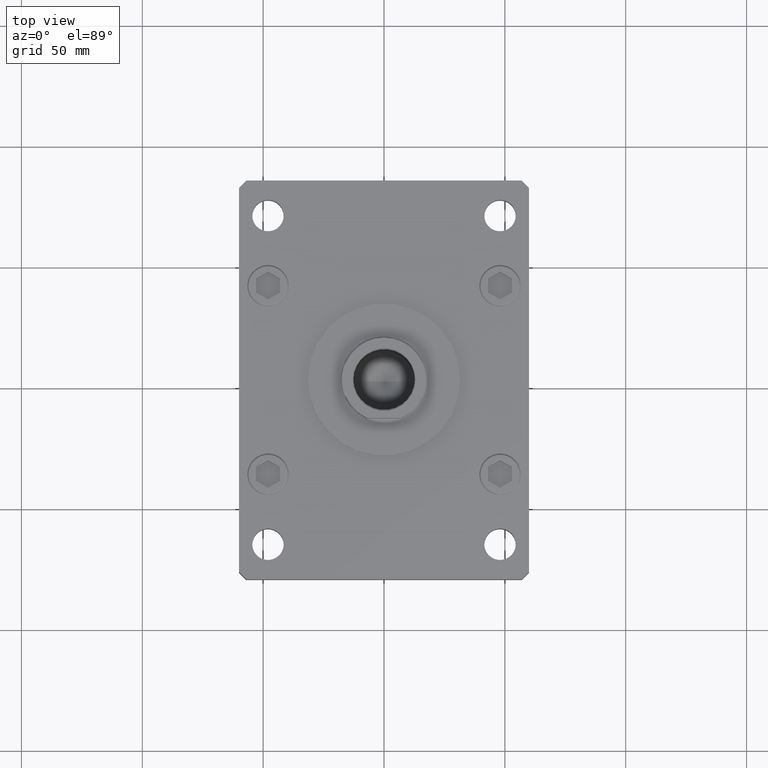
[diagram: clean part render]
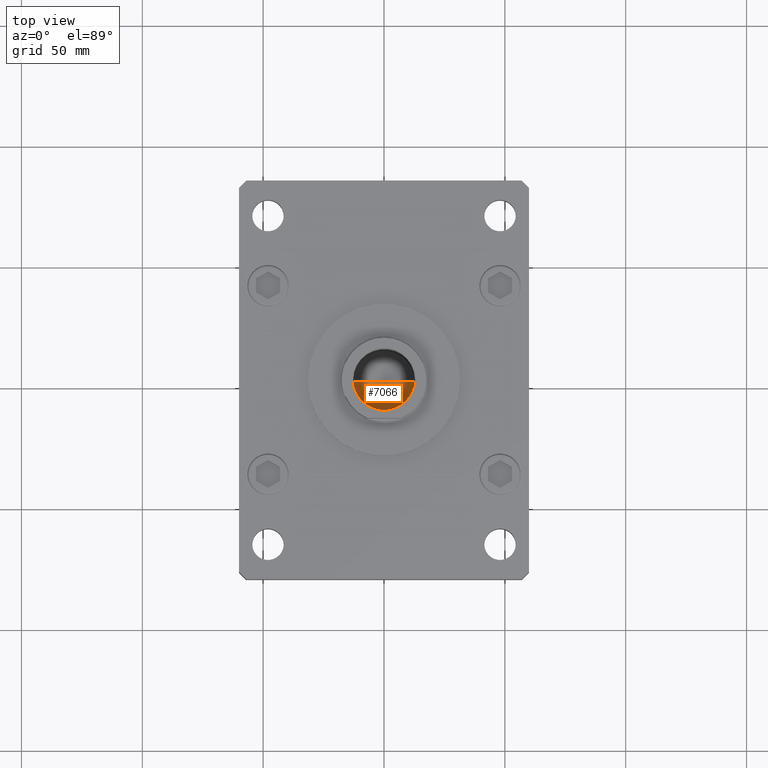
[diagram: same view with one face highlighted and labeled with its STEP entity id]
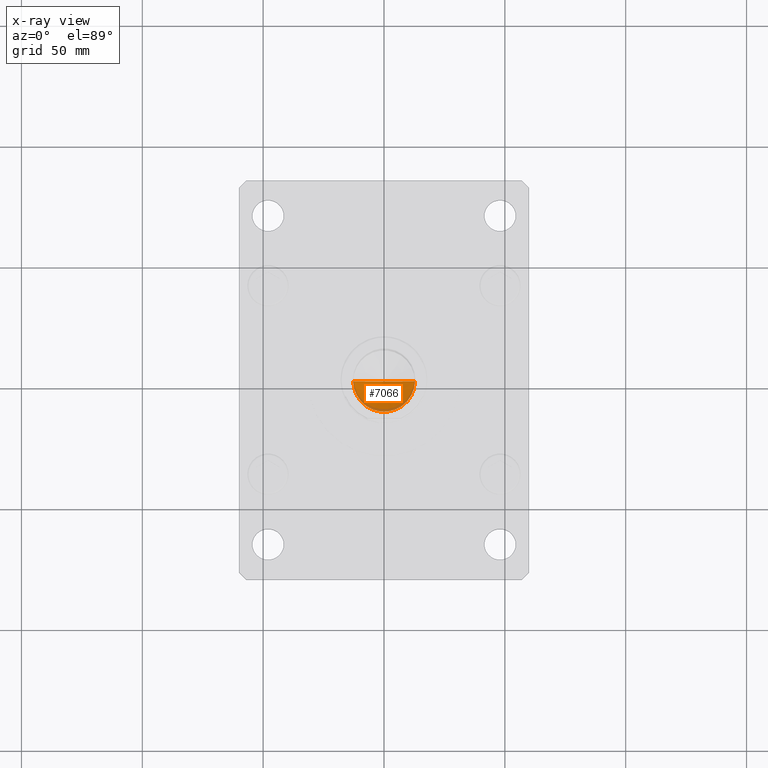
[diagram: x-ray of the same camera — body ghosted, the highlighted face saturated]
A machine part, top view. The second image highlights one B-rep face of the part: STEP entity #7066.
The next image is the same camera in x-ray: the body ghosted, the highlighted face saturated — about 8% of this face is hidden behind the body in this view.
In plain terms, the highlighted conical surface has half-angle 59 deg.
Its self-contained STEP definition (entity closure, byte-faithful):
#1319 = VECTOR ( 'NONE', #18198, 1000.000000000000114 ) ;
#5243 = EDGE_CURVE ( 'NONE', #44090, #50229, #25740, .T. ) ;
#7066 = ADVANCED_FACE ( 'NONE', ( #41360 ), #40998, .F. ) ;
#7968 = EDGE_CURVE ( 'NONE', #50229, #36760, #16717, .T. ) ;
#9770 = ORIENTED_EDGE ( 'NONE', *, *, #7968, .T. ) ;
#12363 = AXIS2_PLACEMENT_3D ( 'NONE', #13035, #45458, #33982 ) ;
#13035 = CARTESIAN_POINT ( 'NONE',  ( 0.000000000000000000, 0.000000000000000000, 144.2500000000000000 ) ) ;
#16585 = DIRECTION ( 'NONE',  ( 1.000000000000000000, 0.000000000000000000, 0.000000000000000000 ) ) ;
#16717 = CIRCLE ( 'NONE', #12363, 12.74999999999999112 ) ;
#16901 = CARTESIAN_POINT ( 'NONE',  ( -1.307202896762960287E-14, 0.000000000000000000, 136.5890271073986071 ) ) ;
#17518 = AXIS2_PLACEMENT_3D ( 'NONE', #53879, #49799, #16585 ) ;
#18198 = DIRECTION ( 'NONE',  ( 0.8571673007021125557, 0.000000000000000000, 0.5150380749100536004 ) ) ;
#18473 = LINE ( 'NONE', #30439, #1319 ) ;
#21921 = DIRECTION ( 'NONE',  ( -0.8571673007021125557, 1.049727191138618942E-16, 0.5150380749100536004 ) ) ;
#23178 = ORIENTED_EDGE ( 'NONE', *, *, #5243, .T. ) ;
#23688 = CARTESIAN_POINT ( 'NONE',  ( 12.74999999999999112, 0.000000000000000000, 144.2500000000000000 ) ) ;
#25740 = LINE ( 'NONE', #38238, #27075 ) ;
#27075 = VECTOR ( 'NONE', #21921, 1000.000000000000114 ) ;
#30439 = CARTESIAN_POINT ( 'NONE',  ( 12.74999999999999112, 0.000000000000000000, 144.2500000000000000 ) ) ;
#33506 = CARTESIAN_POINT ( 'NONE',  ( -12.74999999999999112, 1.561424668912874125E-15, 144.2500000000000000 ) ) ;
#33982 = DIRECTION ( 'NONE',  ( 1.000000000000000000, 0.000000000000000000, 0.000000000000000000 ) ) ;
#36760 = VERTEX_POINT ( 'NONE', #23688 ) ;
#38238 = CARTESIAN_POINT ( 'NONE',  ( -12.74999999999999112, 1.561424668912874125E-15, 144.2500000000000000 ) ) ;
#40998 = CONICAL_SURFACE ( 'NONE', #17518, 12.74999999999999112, 1.029744258676655200 ) ;
#41360 = FACE_OUTER_BOUND ( 'NONE', #42196, .T. ) ;
#42196 = EDGE_LOOP ( 'NONE', ( #51489, #23178, #9770 ) ) ;
#44090 = VERTEX_POINT ( 'NONE', #16901 ) ;
#45458 = DIRECTION ( 'NONE',  ( -0.000000000000000000, -0.000000000000000000, 1.000000000000000000 ) ) ;
#46590 = EDGE_CURVE ( 'NONE', #44090, #36760, #18473, .T. ) ;
#49799 = DIRECTION ( 'NONE',  ( -0.000000000000000000, -0.000000000000000000, 1.000000000000000000 ) ) ;
#50229 = VERTEX_POINT ( 'NONE', #33506 ) ;
#51489 = ORIENTED_EDGE ( 'NONE', *, *, #46590, .F. ) ;
#53879 = CARTESIAN_POINT ( 'NONE',  ( 0.000000000000000000, 0.000000000000000000, 144.2500000000000000 ) ) ;